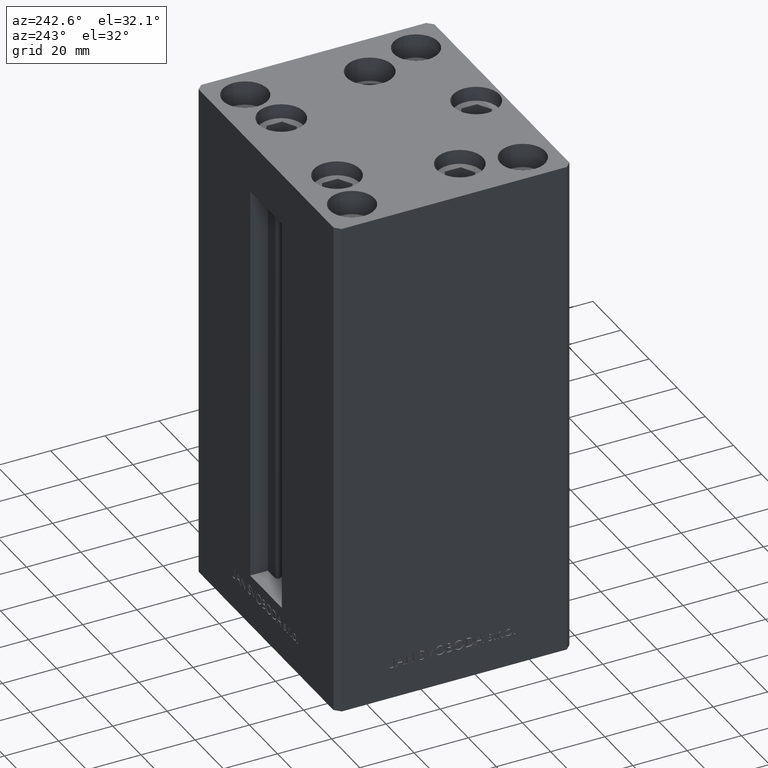
[diagram: clean part render]
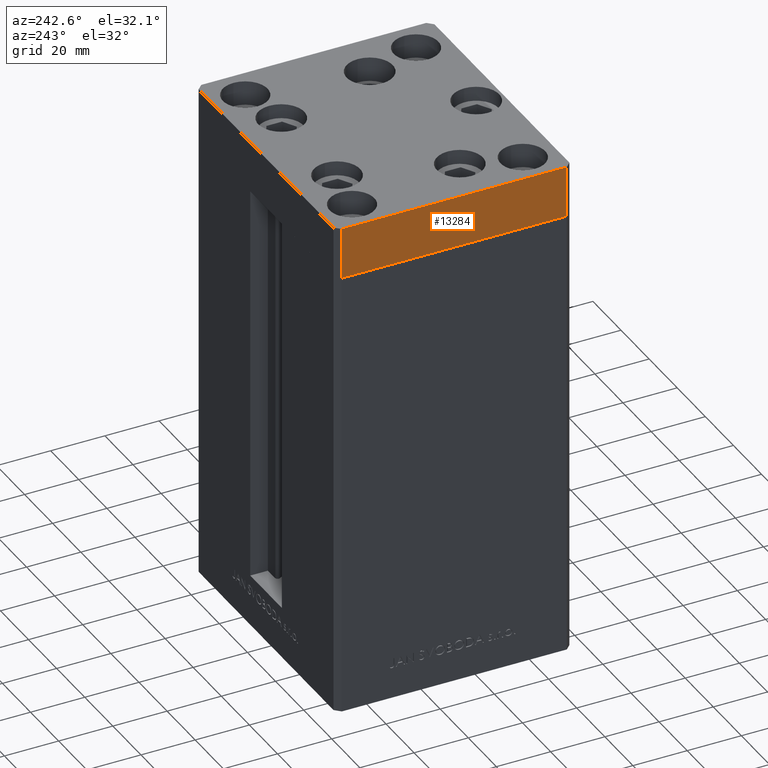
[diagram: same view with one face highlighted and labeled with its STEP entity id]
A machine part, auxiliary view. The second image highlights one B-rep face of the part: STEP entity #13284.
In plain terms, the highlighted planar face has unit normal (-1, -0, 0).
Its self-contained STEP definition (entity closure, byte-faithful):
#379 = LINE ( 'NONE', #49555, #5143 ) ;
#2604 = DIRECTION ( 'NONE',  ( 8.360113137237628665E-17, -1.000000000000000000, 0.000000000000000000 ) ) ;
#3205 = VERTEX_POINT ( 'NONE', #28820 ) ;
#4466 = ORIENTED_EDGE ( 'NONE', *, *, #23035, .T. ) ;
#5143 = VECTOR ( 'NONE', #34732, 1000.000000000000000 ) ;
#5165 = DIRECTION ( 'NONE',  ( 0.000000000000000000, 0.000000000000000000, 1.000000000000000000 ) ) ;
#6673 = ORIENTED_EDGE ( 'NONE', *, *, #42084, .F. ) ;
#7023 = VERTEX_POINT ( 'NONE', #40967 ) ;
#8923 = LINE ( 'NONE', #39530, #27112 ) ;
#9669 = LINE ( 'NONE', #48529, #20553 ) ;
#11010 = ORIENTED_EDGE ( 'NONE', *, *, #14679, .T. ) ;
#11146 = EDGE_LOOP ( 'NONE', ( #6673, #22338, #11010, #4466 ) ) ;
#13284 = ADVANCED_FACE ( 'NONE', ( #22340 ), #41620, .T. ) ;
#14679 = EDGE_CURVE ( 'NONE', #22135, #48626, #21453, .T. ) ;
#14783 = DIRECTION ( 'NONE',  ( 8.360113137237628665E-17, -1.000000000000000000, 0.000000000000000000 ) ) ;
#15712 = CARTESIAN_POINT ( 'NONE',  ( -50.00000000000000000, -41.50000000000000000, -19.00000000000000000 ) ) ;
#18058 = AXIS2_PLACEMENT_3D ( 'NONE', #22583, #30095, #14783 ) ;
#20553 = VECTOR ( 'NONE', #24990, 1000.000000000000000 ) ;
#21453 = LINE ( 'NONE', #33957, #45356 ) ;
#22135 = VERTEX_POINT ( 'NONE', #24179 ) ;
#22338 = ORIENTED_EDGE ( 'NONE', *, *, #47946, .F. ) ;
#22340 = FACE_OUTER_BOUND ( 'NONE', #11146, .T. ) ;
#22583 = CARTESIAN_POINT ( 'NONE',  ( -50.00000000000000711, 41.49999999999995026, -19.00000000000000000 ) ) ;
#23035 = EDGE_CURVE ( 'NONE', #48626, #7023, #8923, .T. ) ;
#24179 = CARTESIAN_POINT ( 'NONE',  ( -50.00000000000000711, 41.49999999999995026, -19.00000000000000000 ) ) ;
#24990 = DIRECTION ( 'NONE',  ( 0.000000000000000000, 0.000000000000000000, 1.000000000000000000 ) ) ;
#27112 = VECTOR ( 'NONE', #5165, 1000.000000000000000 ) ;
#28820 = CARTESIAN_POINT ( 'NONE',  ( -50.00000000000000711, 41.49999999999995026, 0.000000000000000000 ) ) ;
#30095 = DIRECTION ( 'NONE',  ( -1.000000000000000000, -8.360113137237628665E-17, 0.000000000000000000 ) ) ;
#33957 = CARTESIAN_POINT ( 'NONE',  ( -50.00000000000000711, 41.49999999999995026, -19.00000000000000000 ) ) ;
#34732 = DIRECTION ( 'NONE',  ( 8.360113137237628665E-17, -1.000000000000000000, 0.000000000000000000 ) ) ;
#39530 = CARTESIAN_POINT ( 'NONE',  ( -50.00000000000000000, -41.50000000000000000, -19.00000000000000000 ) ) ;
#40967 = CARTESIAN_POINT ( 'NONE',  ( -50.00000000000000000, -41.50000000000000000, 0.000000000000000000 ) ) ;
#41620 = PLANE ( 'NONE',  #18058 ) ;
#42084 = EDGE_CURVE ( 'NONE', #3205, #7023, #379, .T. ) ;
#45356 = VECTOR ( 'NONE', #2604, 1000.000000000000000 ) ;
#47946 = EDGE_CURVE ( 'NONE', #22135, #3205, #9669, .T. ) ;
#48529 = CARTESIAN_POINT ( 'NONE',  ( -50.00000000000000711, 41.49999999999995026, -19.00000000000000000 ) ) ;
#48626 = VERTEX_POINT ( 'NONE', #15712 ) ;
#49555 = CARTESIAN_POINT ( 'NONE',  ( -50.00000000000000711, 41.49999999999995026, 0.000000000000000000 ) ) ;